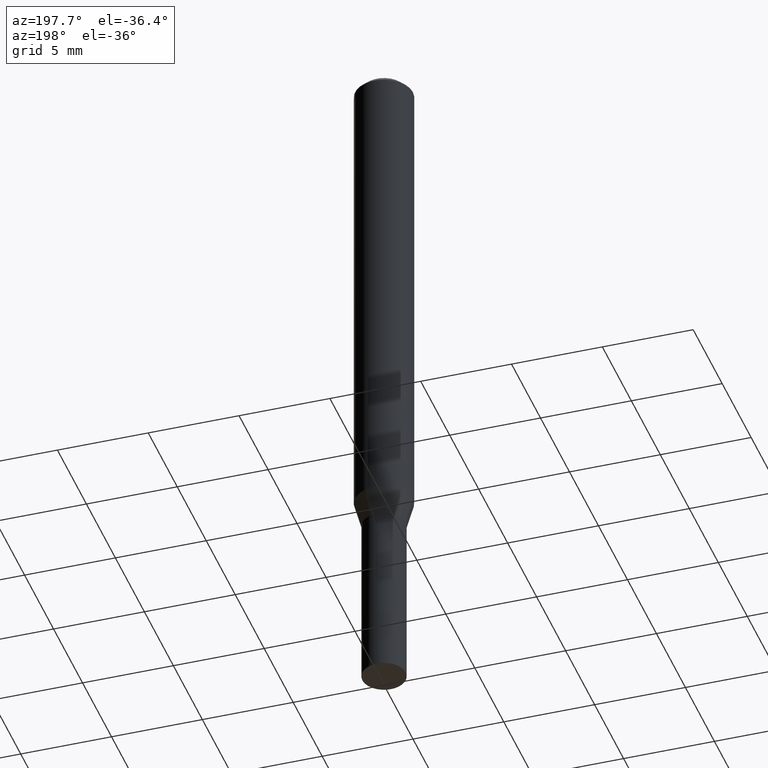
[diagram: clean part render]
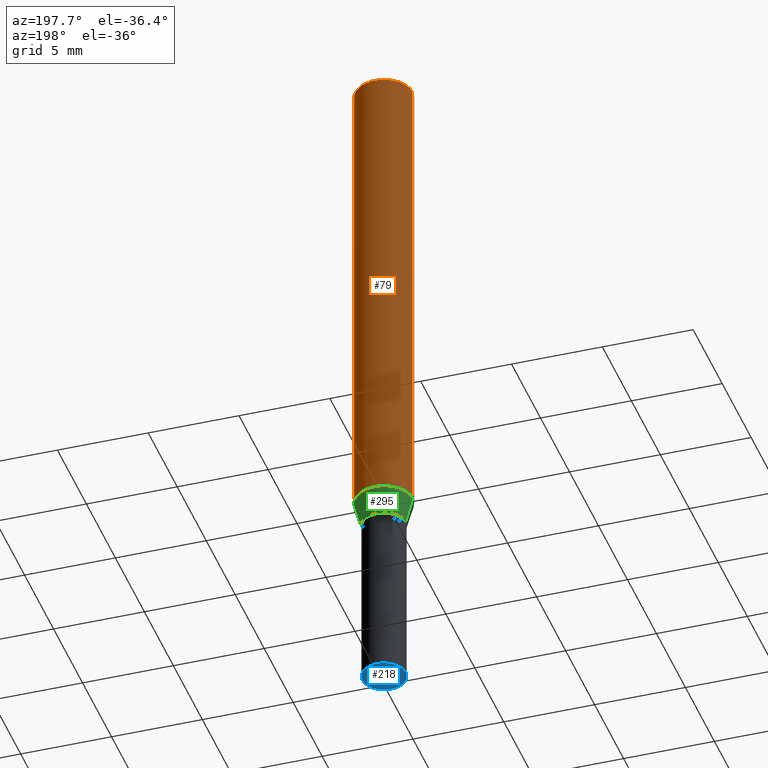
[diagram: same view with three faces highlighted in distinct colors, each labeled with its STEP entity id]
A machine part, auxiliary view with three faces highlighted in distinct colors.
Their STEP definitions:

[orange] entity #79 — the highlighted cylindrical surface (edge-blend (fillet) strip) has radius 1.5875 mm, axis along (-0, 0, 1).
#8 = CYLINDRICAL_SURFACE ( 'NONE', #61, 0.06250000000000000000 ) ;
#35 = VERTEX_POINT ( 'NONE', #253 ) ;
#56 = VERTEX_POINT ( 'NONE', #454 ) ;
#60 = CARTESIAN_POINT ( 'NONE',  ( 0.06250000000000000000, -4.364351673553916694E-16, 3.047610484872459871E-30 ) ) ;
#61 = AXIS2_PLACEMENT_3D ( 'NONE', #291, #433, #189 ) ;
#79 = ADVANCED_FACE ( 'NONE', ( #183 ), #8, .T. ) ;
#84 = DIRECTION ( 'NONE',  ( -2.445468806185136877E-29, 3.491481338843145188E-15, 1.000000000000000000 ) ) ;
#93 = DIRECTION ( 'NONE',  ( 1.000000000000000000, -6.982962677686266711E-15, 0.000000000000000000 ) ) ;
#101 = CARTESIAN_POINT ( 'NONE',  ( 2.584322543101508946E-29, -3.689727675106347649E-15, -1.056780007401926680 ) ) ;
#160 = CARTESIAN_POINT ( 'NONE',  ( 0.06250000000000000000, -4.888073874380388472E-16, -0.01499999999999999944 ) ) ;
#174 = EDGE_CURVE ( 'NONE', #423, #56, #459, .T. ) ;
#183 = FACE_OUTER_BOUND ( 'NONE', #341, .T. ) ;
#189 = DIRECTION ( 'NONE',  ( 1.000000000000000000, -6.982962677686266711E-15, 4.876176775795935793E-29 ) ) ;
#211 = LINE ( 'NONE', #279, #362 ) ;
#213 = AXIS2_PLACEMENT_3D ( 'NONE', #101, #312, #354 ) ;
#224 = ORIENTED_EDGE ( 'NONE', *, *, #379, .T. ) ;
#239 = DIRECTION ( 'NONE',  ( -2.445468806185136877E-29, 3.491481338843145188E-15, 1.000000000000000000 ) ) ;
#253 = CARTESIAN_POINT ( 'NONE',  ( -0.06249999999999999306, -3.245638465256285822E-15, -1.056780007401926680 ) ) ;
#260 = EDGE_CURVE ( 'NONE', #35, #56, #211, .T. ) ;
#262 = ORIENTED_EDGE ( 'NONE', *, *, #307, .F. ) ;
#268 = CIRCLE ( 'NONE', #213, 0.06249999999999999306 ) ;
#279 = CARTESIAN_POINT ( 'NONE',  ( -0.06250000000000000000, 4.440892098500626162E-16, -3.074334431409316114E-30 ) ) ;
#291 = CARTESIAN_POINT ( 'NONE',  ( 0.000000000000000000, 0.000000000000000000, 0.000000000000000000 ) ) ;
#307 = EDGE_CURVE ( 'NONE', #425, #423, #314, .T. ) ;
#312 = DIRECTION ( 'NONE',  ( -2.445468806185136597E-29, 3.491481338843145583E-15, 1.000000000000000000 ) ) ;
#314 = LINE ( 'NONE', #60, #368 ) ;
#341 = EDGE_LOOP ( 'NONE', ( #224, #450, #387, #262 ) ) ;
#345 = DIRECTION ( 'NONE',  ( -2.445468806185136597E-29, 3.491481338843145583E-15, 1.000000000000000000 ) ) ;
#346 = AXIS2_PLACEMENT_3D ( 'NONE', #377, #345, #93 ) ;
#354 = DIRECTION ( 'NONE',  ( 1.000000000000000000, -6.982962677686263555E-15, 0.000000000000000000 ) ) ;
#362 = VECTOR ( 'NONE', #84, 39.37007874015748143 ) ;
#368 = VECTOR ( 'NONE', #239, 39.37007874015748143 ) ;
#377 = CARTESIAN_POINT ( 'NONE',  ( 3.668203209277705088E-31, -5.237222008264718399E-17, -0.01499999999999999944 ) ) ;
#379 = EDGE_CURVE ( 'NONE', #425, #35, #268, .T. ) ;
#387 = ORIENTED_EDGE ( 'NONE', *, *, #174, .F. ) ;
#418 = CARTESIAN_POINT ( 'NONE',  ( 0.06249999999999999306, -4.126162842461740107E-15, -1.056780007401926680 ) ) ;
#423 = VERTEX_POINT ( 'NONE', #160 ) ;
#425 = VERTEX_POINT ( 'NONE', #418 ) ;
#433 = DIRECTION ( 'NONE',  ( -2.445468806185136597E-29, 3.491481338843145583E-15, 1.000000000000000000 ) ) ;
#450 = ORIENTED_EDGE ( 'NONE', *, *, #260, .T. ) ;
#454 = CARTESIAN_POINT ( 'NONE',  ( -0.06250000000000000000, -1.426960737744434945E-15, -0.01499999999999999944 ) ) ;
#459 = CIRCLE ( 'NONE', #346, 0.06250000000000000000 ) ;

[blue] entity #218 — the highlighted planar face has unit normal (-0, 0, 1).
#1 = EDGE_CURVE ( 'NONE', #136, #119, #212, .T. ) ;
#21 = DIRECTION ( 'NONE',  ( -2.445468806185136597E-29, 3.491481338843145583E-15, 1.000000000000000000 ) ) ;
#59 = EDGE_LOOP ( 'NONE', ( #426, #465 ) ) ;
#69 = AXIS2_PLACEMENT_3D ( 'NONE', #275, #21, #228 ) ;
#105 = DIRECTION ( 'NONE',  ( -2.438088387897960049E-29, 3.491481338843145188E-15, 1.000000000000000000 ) ) ;
#119 = VERTEX_POINT ( 'NONE', #364 ) ;
#136 = VERTEX_POINT ( 'NONE', #304 ) ;
#158 = EDGE_CURVE ( 'NONE', #119, #136, #419, .T. ) ;
#178 = AXIS2_PLACEMENT_3D ( 'NONE', #297, #241, #321 ) ;
#212 = CIRCLE ( 'NONE', #178, 0.04689999999999999725 ) ;
#218 = ADVANCED_FACE ( 'NONE', ( #367 ), #230, .F. ) ;
#228 = DIRECTION ( 'NONE',  ( 1.000000000000000000, -6.982962677686256455E-15, 0.000000000000000000 ) ) ;
#230 = PLANE ( 'NONE',  #245 ) ;
#241 = DIRECTION ( 'NONE',  ( -2.445468806185136597E-29, 3.491481338843145583E-15, 1.000000000000000000 ) ) ;
#243 = DIRECTION ( 'NONE',  ( 1.000000000000000000, -6.982962677686265922E-15, 4.876176775795935793E-29 ) ) ;
#245 = AXIS2_PLACEMENT_3D ( 'NONE', #342, #105, #243 ) ;
#275 = CARTESIAN_POINT ( 'NONE',  ( 3.668203209277704895E-29, -5.237222008264718177E-15, -1.500000000000000222 ) ) ;
#297 = CARTESIAN_POINT ( 'NONE',  ( 3.668203209277704895E-29, -5.237222008264718177E-15, -1.500000000000000222 ) ) ;
#304 = CARTESIAN_POINT ( 'NONE',  ( -0.04689999999999999725, -4.249324714160141733E-15, -1.500000000000000222 ) ) ;
#321 = DIRECTION ( 'NONE',  ( 1.000000000000000000, -6.982962677686256455E-15, 0.000000000000000000 ) ) ;
#342 = CARTESIAN_POINT ( 'NONE',  ( 3.576687321579069994E-29, -5.368277968210015545E-15, -1.500000000000000222 ) ) ;
#364 = CARTESIAN_POINT ( 'NONE',  ( 0.04689999999999999725, -5.564722957848204079E-15, -1.500000000000000222 ) ) ;
#367 = FACE_OUTER_BOUND ( 'NONE', #59, .T. ) ;
#419 = CIRCLE ( 'NONE', #69, 0.04689999999999999725 ) ;
#426 = ORIENTED_EDGE ( 'NONE', *, *, #158, .F. ) ;
#465 = ORIENTED_EDGE ( 'NONE', *, *, #1, .F. ) ;

[green] entity #295 — the highlighted conical surface has half-angle 15 deg.
#31 = CARTESIAN_POINT ( 'NONE',  ( 0.04690000000000019154, -4.220502642393595055E-15, -1.115000000000000213 ) ) ;
#35 = VERTEX_POINT ( 'NONE', #253 ) ;
#41 = VERTEX_POINT ( 'NONE', #31 ) ;
#49 = DIRECTION ( 'NONE',  ( 0.2588190451025217942, 1.565188264969618812E-15, 0.9659258262890679791 ) ) ;
#80 = DIRECTION ( 'NONE',  ( 1.000000000000000000, -6.982962677686269866E-15, 0.000000000000000000 ) ) ;
#82 = ORIENTED_EDGE ( 'NONE', *, *, #208, .T. ) ;
#91 = DIRECTION ( 'NONE',  ( 1.000000000000000000, -6.982962677686269866E-15, 0.000000000000000000 ) ) ;
#96 = DIRECTION ( 'NONE',  ( -0.2588190451025217942, 5.211531920934552619E-15, 0.9659258262890679791 ) ) ;
#101 = CARTESIAN_POINT ( 'NONE',  ( 2.584322543101508946E-29, -3.689727675106347649E-15, -1.056780007401926680 ) ) ;
#109 = VECTOR ( 'NONE', #96, 39.37007874015748143 ) ;
#117 = AXIS2_PLACEMENT_3D ( 'NONE', #422, #383, #91 ) ;
#127 = AXIS2_PLACEMENT_3D ( 'NONE', #405, #255, #80 ) ;
#172 = FACE_OUTER_BOUND ( 'NONE', #376, .T. ) ;
#176 = ORIENTED_EDGE ( 'NONE', *, *, #379, .F. ) ;
#193 = ORIENTED_EDGE ( 'NONE', *, *, #397, .T. ) ;
#208 = EDGE_CURVE ( 'NONE', #41, #334, #406, .T. ) ;
#213 = AXIS2_PLACEMENT_3D ( 'NONE', #101, #312, #354 ) ;
#253 = CARTESIAN_POINT ( 'NONE',  ( -0.06249999999999999306, -3.245638465256285822E-15, -1.056780007401926680 ) ) ;
#254 = CONICAL_SURFACE ( 'NONE', #117, 0.04690000000000019154, 0.2617993877991505181 ) ;
#255 = DIRECTION ( 'NONE',  ( -2.445468806185136597E-29, 3.491481338843145583E-15, 1.000000000000000000 ) ) ;
#256 = LINE ( 'NONE', #358, #357 ) ;
#268 = CIRCLE ( 'NONE', #213, 0.06249999999999999306 ) ;
#295 = ADVANCED_FACE ( 'NONE', ( #172 ), #254, .T. ) ;
#312 = DIRECTION ( 'NONE',  ( -2.445468806185136597E-29, 3.491481338843145583E-15, 1.000000000000000000 ) ) ;
#334 = VERTEX_POINT ( 'NONE', #416 ) ;
#351 = LINE ( 'NONE', #375, #109 ) ;
#354 = DIRECTION ( 'NONE',  ( 1.000000000000000000, -6.982962677686263555E-15, 0.000000000000000000 ) ) ;
#357 = VECTOR ( 'NONE', #49, 39.37007874015748143 ) ;
#358 = CARTESIAN_POINT ( 'NONE',  ( 0.04690000000000019154, -4.220502642393595055E-15, -1.115000000000000213 ) ) ;
#375 = CARTESIAN_POINT ( 'NONE',  ( -0.04690000000000019154, -3.559757149738619424E-15, -1.115000000000000213 ) ) ;
#376 = EDGE_LOOP ( 'NONE', ( #82, #193, #176, #435 ) ) ;
#379 = EDGE_CURVE ( 'NONE', #425, #35, #268, .T. ) ;
#383 = DIRECTION ( 'NONE',  ( -2.445468806185136597E-29, 3.491481338843145583E-15, 1.000000000000000000 ) ) ;
#397 = EDGE_CURVE ( 'NONE', #334, #35, #351, .T. ) ;
#405 = CARTESIAN_POINT ( 'NONE',  ( 2.726697718896427687E-29, -3.893001692810107575E-15, -1.115000000000000213 ) ) ;
#406 = CIRCLE ( 'NONE', #127, 0.04690000000000019154 ) ;
#416 = CARTESIAN_POINT ( 'NONE',  ( -0.04690000000000019154, -3.402697807497452228E-15, -1.115000000000000213 ) ) ;
#418 = CARTESIAN_POINT ( 'NONE',  ( 0.06249999999999999306, -4.126162842461740107E-15, -1.056780007401926680 ) ) ;
#422 = CARTESIAN_POINT ( 'NONE',  ( 2.726697718896427687E-29, -3.893001692810107575E-15, -1.115000000000000213 ) ) ;
#425 = VERTEX_POINT ( 'NONE', #418 ) ;
#435 = ORIENTED_EDGE ( 'NONE', *, *, #446, .F. ) ;
#446 = EDGE_CURVE ( 'NONE', #41, #425, #256, .T. ) ;